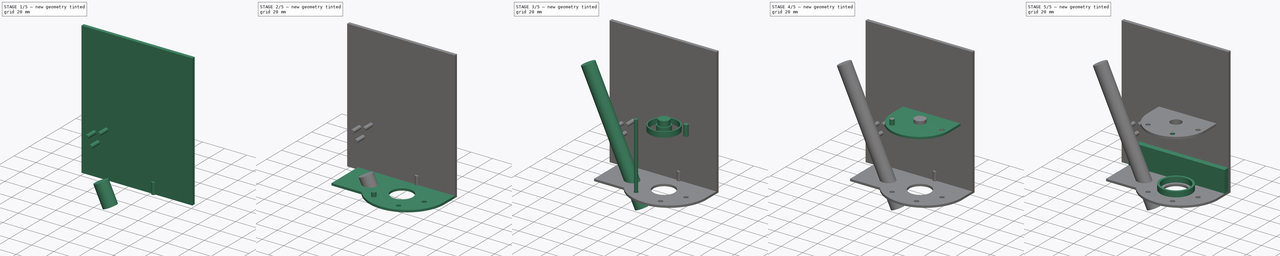
[diagram: build sequence overview — one tinted view per stage of 5, left to right]
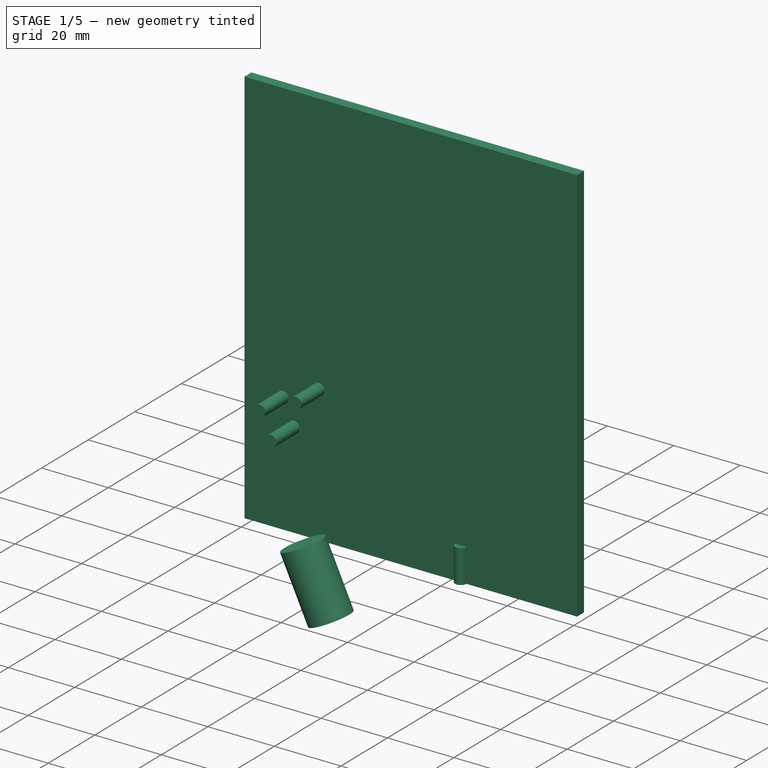
[diagram: stage 1 of 5 — iso view after this stage's code; geometry added in this stage tinted green]
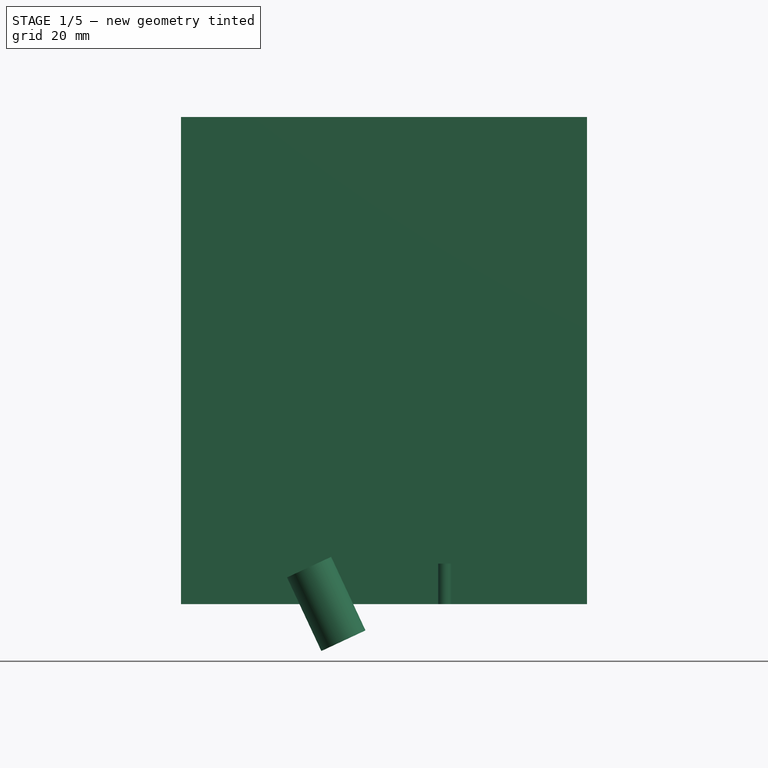
[diagram: stage 1 of 5 — front view after this stage's code; geometry added in this stage tinted green]
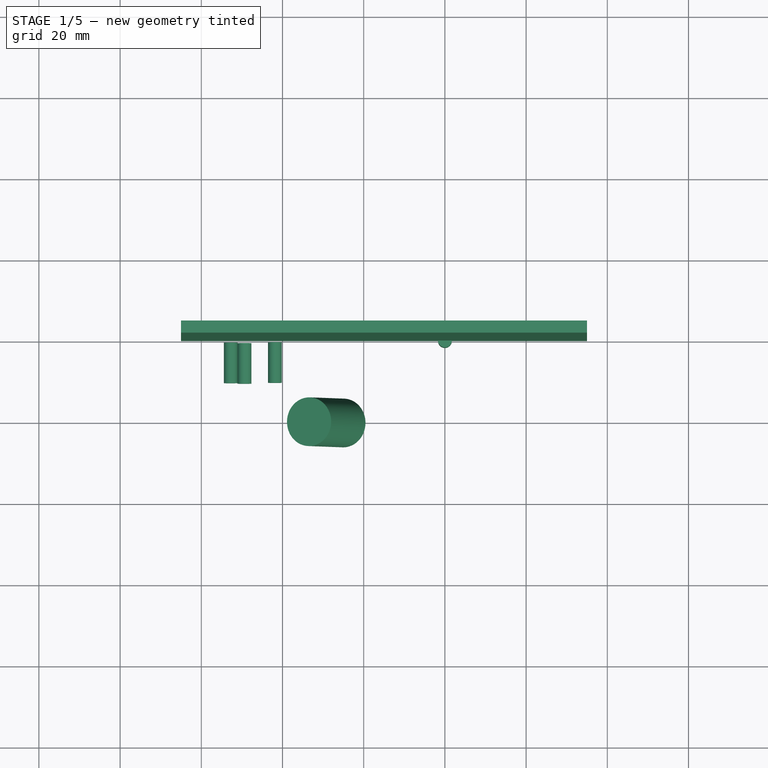
[diagram: stage 1 of 5 — top view after this stage's code; geometry added in this stage tinted green]
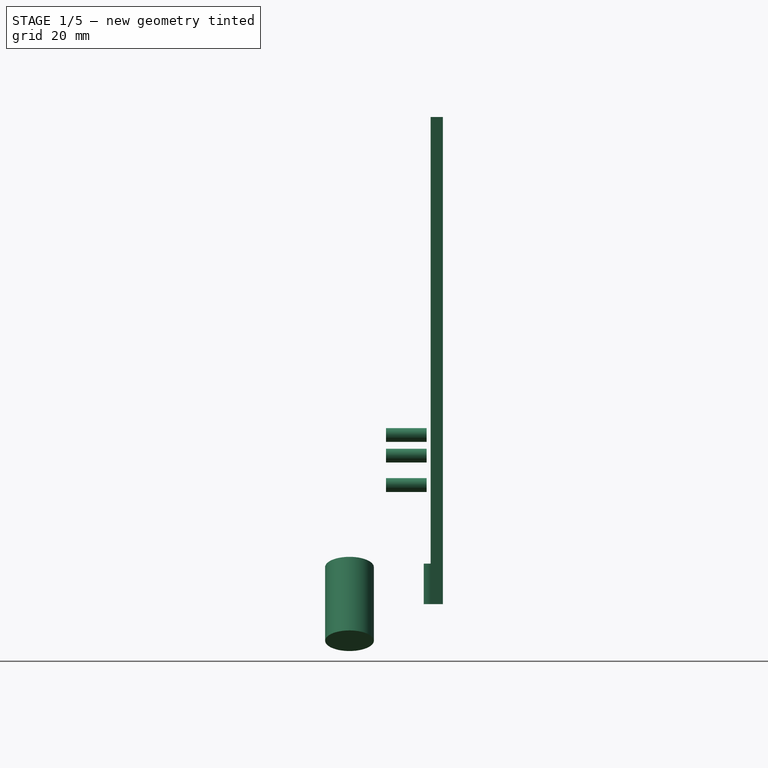
[diagram: stage 1 of 5 — right view after this stage's code; geometry added in this stage tinted green]
FCSTD DOCUMENT  (FreeCAD 0.19R)
Label: traeger1
License: All rights reserved
LicenseURL: http://en.wikipedia.org/wiki/All_rights_reserved
objects: Part::Cylinder×13, Part::Cut×8, Sketcher::SketchObject×6, Part::Feature×6, Part::Extrusion×5, Part::FeaturePython×3, Part::MultiFuse×1, Part::Box×1
note: 43 computed .brp shape members not serialized (recipe doc carries the construction recipe); baked Part::Feature solids carry a one-line shape summary decoded from their .brp

FEATURE [Part::Cylinder] Cylinder008
  Angle = 360
  AttacherType = Attacher::AttachEngine3D
  Height = 20
  Placement = pos=(-25,-20,-9) rot=(0,-1,0;0.436332rad)
  Radius = 6
FEATURE [Part::Feature] Cut007001
  shape: bbox 90 x 48 x 12.14 mm, 12 faces (baked)
FEATURE [Part::Feature] Cut007002
  shape: bbox 90 x 48 x 12.14 mm, 12 faces (baked)
FEATURE [Part::Feature] Extrude002001
  shape: bbox 90 x 5 x 20 mm, 6 faces (baked)
FEATURE [Part::Box] Box  label="Cube"
  AttacherType = Attacher::AttachEngine3D
  Height = 120
  Length = 100
  Placement = pos=(-65,0,0) rot=(0,0,1;0rad)
  Width = 3
FEATURE [Part::Feature] Cut003001  label="CameraHolder001"
  Placement = pos=(-45.2886,0,34.7499) rot=(0,-1,0;0.436332rad)
  shape: bbox 20.91 x 29.15 x 18.98 mm, 27 faces (baked)
FEATURE [Part::Cylinder] Cylinder009
  Angle = 360
  AttacherType = Attacher::AttachEngine3D
  Height = 10
  Radius = 1.7
FEATURE [Part::Cylinder] Cylinder010
  Angle = 360
  AttacherType = Attacher::AttachEngine3D
  Height = 10
  Placement = pos=(-49.37,-1,29.3454) rot=(0.954201,-0.211541,0.211541;1.61766rad)
  Radius = 1.7
FEATURE [Part::Cylinder] Cylinder011
  Angle = 360
  AttacherType = Attacher::AttachEngine3D
  Height = 10
  Placement = pos=(-41.8752,-1,41.6672) rot=(0.954201,-0.211541,0.211541;1.61766rad)
  Radius = 1.7
FEATURE [Part::Cylinder] Cylinder012
  Angle = 360
  AttacherType = Attacher::AttachEngine3D
  Height = 10
  Placement = pos=(-52.7509,-1,36.5958) rot=(0.954201,-0.211541,0.211541;1.61766rad)
  Radius = 1.7
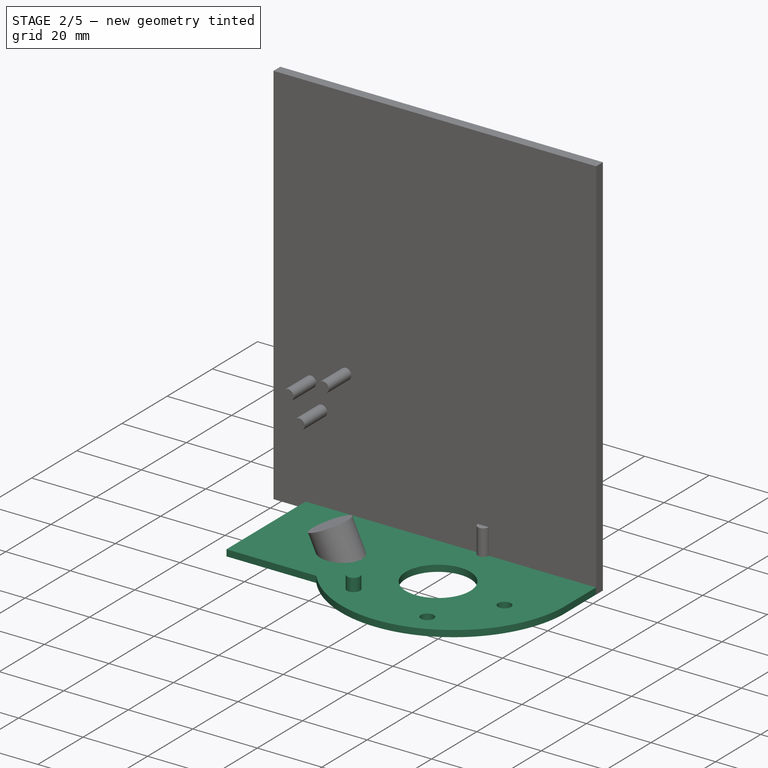
[diagram: stage 2 of 5 — iso view after this stage's code; geometry added in this stage tinted green]
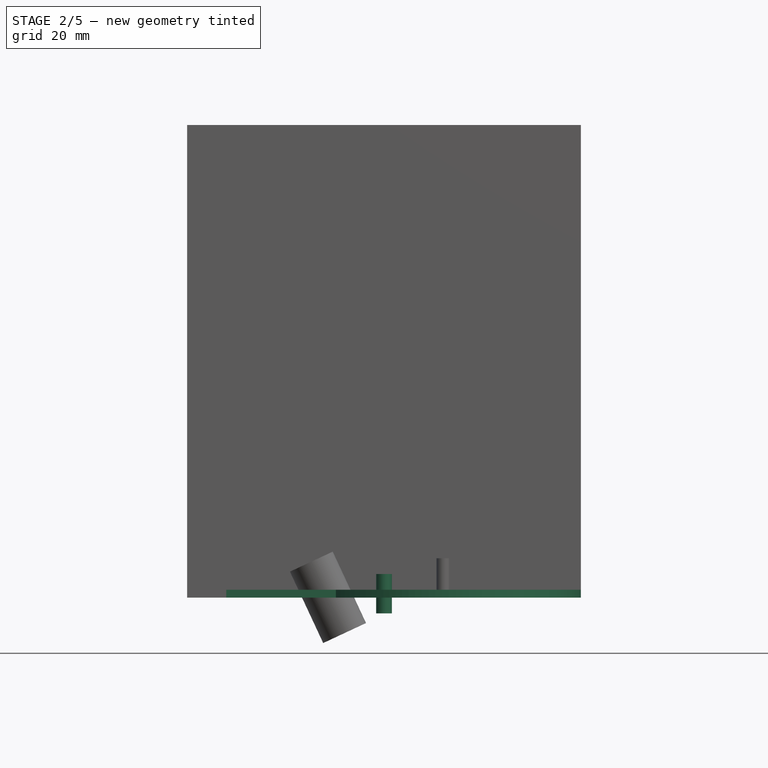
[diagram: stage 2 of 5 — front view after this stage's code; geometry added in this stage tinted green]
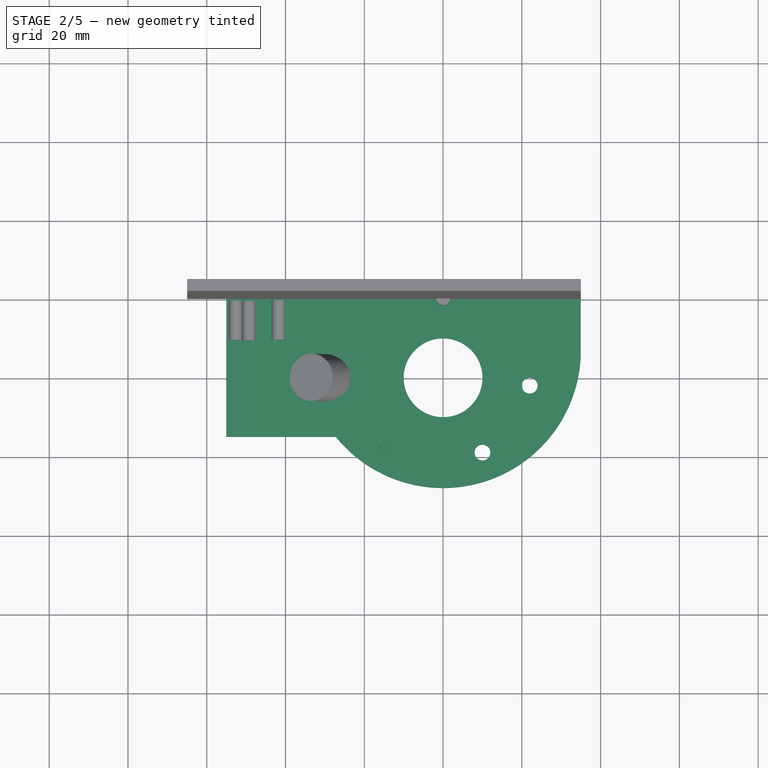
[diagram: stage 2 of 5 — top view after this stage's code; geometry added in this stage tinted green]
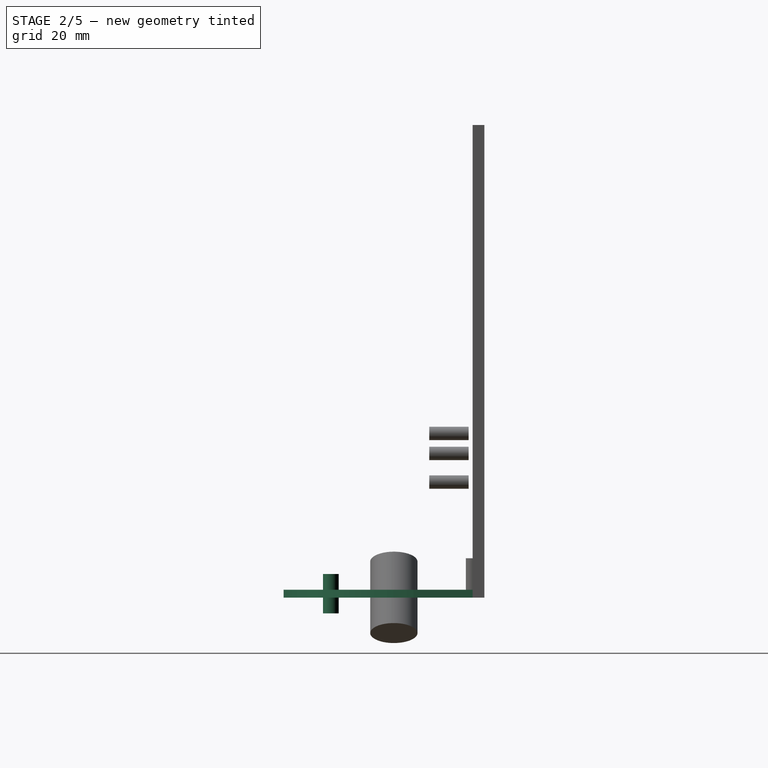
[diagram: stage 2 of 5 — right view after this stage's code; geometry added in this stage tinted green]
FEATURE [Sketcher::SketchObject] Sketch
  FullyConstrained = false
  sketch-geometry (6):
    g0: LineSegment StartX=-55.0572 StartY=-35 StartZ=0 EndX=-27.2213 EndY=-35 EndZ=0
    g1: LineSegment StartX=34.9428 StartY=0 StartZ=0 EndX=34.9428 EndY=-15 EndZ=0
    g2: ArcOfCircle CenterX=0 CenterY=-13 CenterZ=0 NormalX=0 NormalY=0 NormalZ=1 AngleXU=0 Radius=35 StartAngle=3.82131 EndAngle=6.22601
    g3: LineSegment StartX=-55.0572 StartY=-35 StartZ=0 EndX=-55.0572 EndY=0 EndZ=0
    g4: LineSegment StartX=34.9428 StartY=0 StartZ=0 EndX=-55.0572 EndY=0 EndZ=0
    g5: Circle CenterX=0 CenterY=-20 CenterZ=0 NormalX=0 NormalY=0 NormalZ=1 AngleXU=0 Radius=10
  constraints (19):
    c: Coincident(g2,g0)
    c: Coincident(g2,g1)
    c: PointOnObject(g2,g-2)
    c: Vertical(g1)
    c: Vertical(g3)
    c: Horizontal(g0)
    c: Coincident(g4,g1)
    c: Coincident(g4,g3)
    c: Horizontal(g4)
    c: Coincident(g3,g0)
    c: PointOnObject(g-1,g4)
    c: Radius(g5) = 10
    c: Radius(g2) = 35
    c: Distance(g4) = 90
    c: Distance(g3) = 35
    c: Distance(g-1,g5) = 20
    c: Distance(g-1,g2) = 13
    c: Distance(g1) = 15
    c: PointOnObject(g5,g-2)
FEATURE [Part::Extrusion] Extrude
  Base = -> Sketch
  Dir = (0,0,1)
  DirMode = 2
  FaceMakerClass = Part::FaceMakerBullseye
  LengthFwd = 2
  LengthRev = 0
  Solid = true
  Symmetric = false
FEATURE [Part::Cylinder] Cylinder004
  Angle = 360
  AttacherType = Attacher::AttachEngine3D
  Height = 10
  Placement = pos=(22,-22,-4) rot=(0,0,1;0rad)
  Radius = 2
FEATURE [Part::Cylinder] Cylinder005
  Angle = 360
  AttacherType = Attacher::AttachEngine3D
  Height = 10
  Placement = pos=(10,-39,-4) rot=(0,0,1;0rad)
  Radius = 2
FEATURE [Part::Cylinder] Cylinder006
  Angle = 360
  AttacherType = Attacher::AttachEngine3D
  Height = 10
  Placement = pos=(-15,-36,-4) rot=(0,0,1;0rad)
  Radius = 2
FEATURE [Part::Cut] Cut004
  Base = -> Extrude
  Tool = -> Cylinder004
FEATURE [Part::Cut] Cut005
  Base = -> Cut004
  Tool = -> Cylinder005
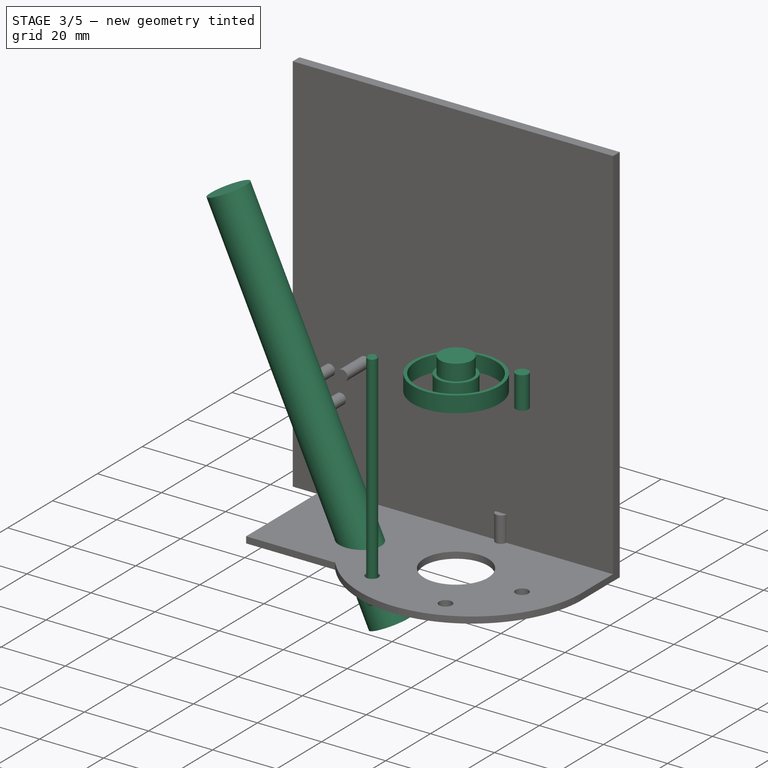
[diagram: stage 3 of 5 — iso view after this stage's code; geometry added in this stage tinted green]
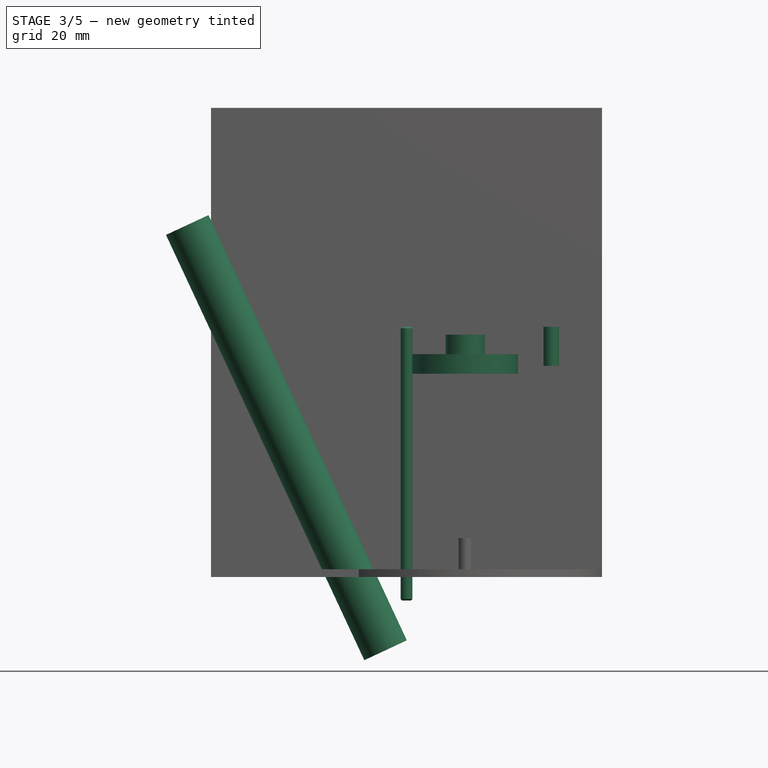
[diagram: stage 3 of 5 — front view after this stage's code; geometry added in this stage tinted green]
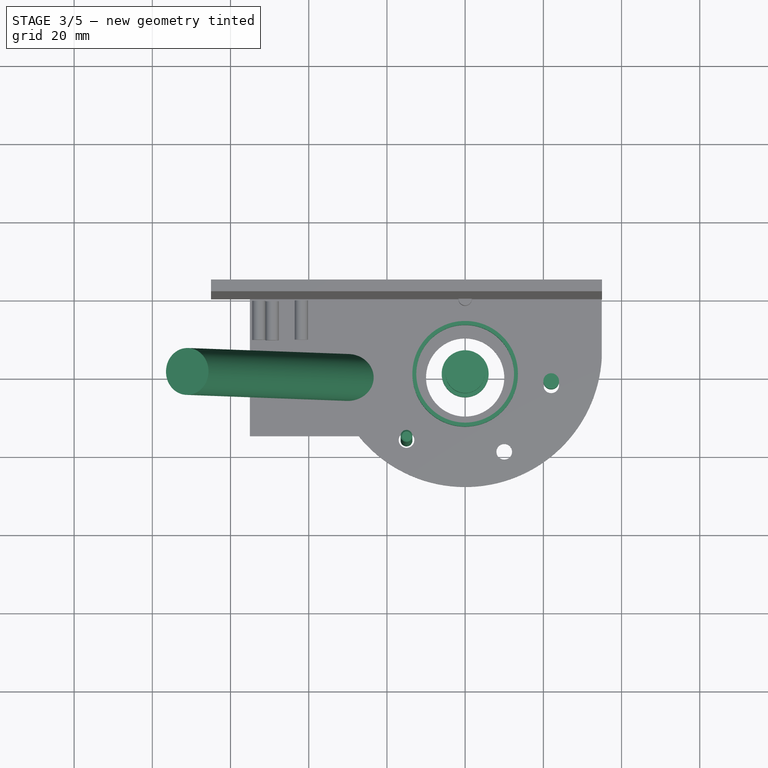
[diagram: stage 3 of 5 — top view after this stage's code; geometry added in this stage tinted green]
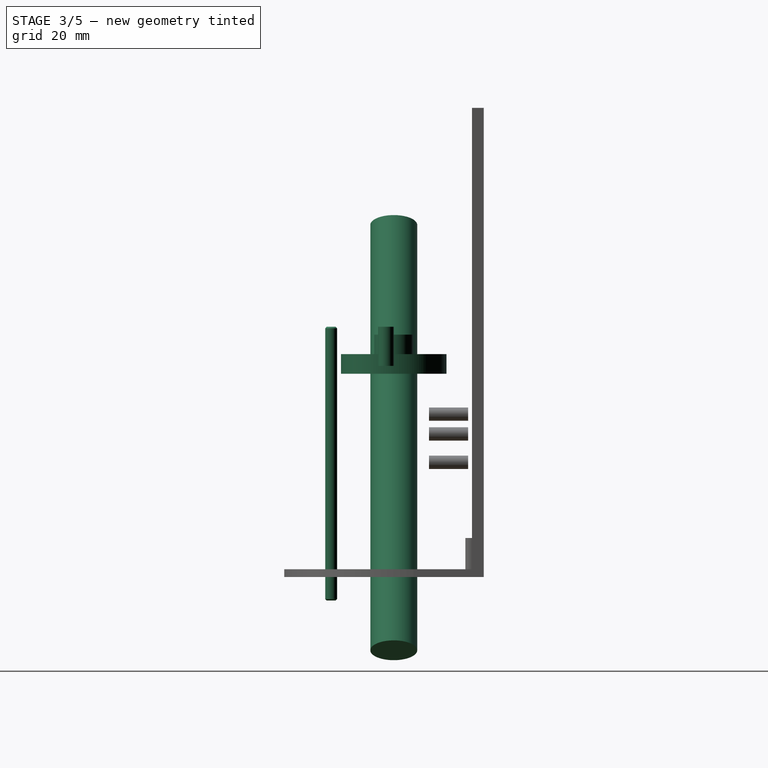
[diagram: stage 3 of 5 — right view after this stage's code; geometry added in this stage tinted green]
FEATURE [Part::FeaturePython] ThreadedRod002  label="M3x70.0-ThreadedRod006"  # Fasteners workbench fastener (typed FeaturePython)
  Placement = pos=(-15,-36,64) rot=(0,0,1;0rad)
  diameter = 4
  invert = false
  length = 70
  matchOuter = false
  offset = 0
  thread = false
FEATURE [Part::Feature] Sweep001
  Placement = pos=(0,-20,3) rot=(0,0,1;0rad)
  shape: bbox 32.61 x 36.58 x 51.9 mm, 12 faces (baked)
FEATURE [Part::Feature] Fusion001  label="Pen"
  Placement = pos=(0,-20,91) rot=(1,0,0;3.14159rad)
  shape: bbox 10 x 10 x 105 mm, 8 faces (baked)
FEATURE [Sketcher::SketchObject] Sketch003
  ExternalGeometry = -> [Fusion001,Sweep001]
  FullyConstrained = true
  Placement = pos=(0,0,52) rot=(0,0,1;0rad)
  sketch-geometry (11):
    g0: Circle CenterX=0 CenterY=-20 CenterZ=0 NormalX=0 NormalY=0 NormalZ=1 AngleXU=0 Radius=12.5
    g1: GeomPoint X=12.5 Y=-20 Z=0
    g2: Circle CenterX=0 CenterY=-20 CenterZ=0 NormalX=0 NormalY=0 NormalZ=1 AngleXU=0 Radius=13.5
    g3: GeomPoint X=13.5 Y=-20 Z=0
    g4: LineSegment StartX=12.5 StartY=-20 StartZ=0 EndX=13.5 EndY=-20 EndZ=0
    g5: Circle CenterX=0 CenterY=-20 CenterZ=0 NormalX=0 NormalY=0 NormalZ=1 AngleXU=0 Radius=5
    g6: Circle CenterX=0 CenterY=-20 CenterZ=0 NormalX=0 NormalY=0 NormalZ=1 AngleXU=0 Radius=6
    g7: GeomPoint X=5 Y=-20 Z=0
    g8: GeomPoint X=6 Y=-20 Z=0
    g9: LineSegment StartX=5 StartY=-20 StartZ=0 EndX=6 EndY=-20 EndZ=0
    g10: LineSegment StartX=5 StartY=-20 StartZ=0 EndX=0 EndY=-20 EndZ=0
  constraints (21):
    c: Coincident(g0,g-3)
    c: PointOnObject(g1,g0)
    c: Coincident(g1,g-4)
    c: Coincident(g2,g0)
    c: PointOnObject(g3,g2)
    c: Coincident(g4,g1)
    c: Coincident(g4,g3)
    c: Horizontal(g4)
    c: Distance(g4) = 1
    c: Coincident(g5,g0)
    c: Radius(g5) = 5
    c: Coincident(g6,g0)
    c: PointOnObject(g7,g5)
    c: PointOnObject(g8,g6)
    c: Coincident(g9,g7)
    c: Coincident(g9,g8)
    c: Horizontal(g9)
    c: Coincident(g10,g7)
    c: Coincident(g10,g0)
    c: Horizontal(g10)
    c: Distance(g9) = 1
FEATURE [Part::Extrusion] Extrude003
  Base = -> Sketch003
  Dir = (0,0,1)
  DirMode = 2
  FaceMakerClass = Part::FaceMakerBullseye
  LengthFwd = 5
  LengthRev = 0
  Solid = true
  Symmetric = false
FEATURE [Sketcher::SketchObject] Sketch005
  ExternalGeometry = -> [ThreadedRod002,ThreadedRod001,ThreadedRod,Fusion001]
  FullyConstrained = true
  MapMode = 5
  Placement = pos=(0,0,59) rot=(0,0,1;0rad)
  Support = -> [Fusion]
  sketch-geometry (4):
    g0: Circle CenterX=-15 CenterY=-36 CenterZ=0 NormalX=0 NormalY=0 NormalZ=1 AngleXU=0 Radius=2
    g1: Circle CenterX=10 CenterY=-39 CenterZ=0 NormalX=0 NormalY=0 NormalZ=1 AngleXU=0 Radius=2
    g2: Circle CenterX=22 CenterY=-22 CenterZ=0 NormalX=0 NormalY=0 NormalZ=1 AngleXU=0 Radius=2
    g3: Circle CenterX=0 CenterY=-20 CenterZ=0 NormalX=0 NormalY=0 NormalZ=1 AngleXU=0 Radius=5
  constraints (8):
    c: Coincident(g0,g-3)
    c: Coincident(g1,g-4)
    c: Coincident(g2,g-5)
    c: Radius(g2) = 2
    c: Radius(g1) = 2
    c: Radius(g0) = 2
    c: Coincident(g3,g-6)
    c: Radius(g3) = 5
FEATURE [Part::Cylinder] Cylinder
  Angle = 360
  AttacherType = Attacher::AttachEngine3D
  Height = 10
  Placement = pos=(22,-22,54) rot=(0,0,1;0rad)
  Radius = 2
FEATURE [Part::Cylinder] Cylinder003
  Angle = 360
  AttacherType = Attacher::AttachEngine3D
  Height = 10
  Placement = pos=(0,-20,62) rot=(1,0,0;3.14159rad)
  Radius = 5
FEATURE [Part::Cut] Cut006
  Base = -> Cut005
  Tool = -> Cylinder006
FEATURE [Part::Cylinder] Cylinder007  label="Camera"
  Angle = 360
  AttacherType = Attacher::AttachEngine3D
  Height = 120
  Placement = pos=(-20.3541,-20,-18.7222) rot=(0,-1,0;0.436332rad)
  Radius = 6
FEATURE [Part::Cut] Cut007
  Base = -> Cut006
  Tool = -> Cylinder008
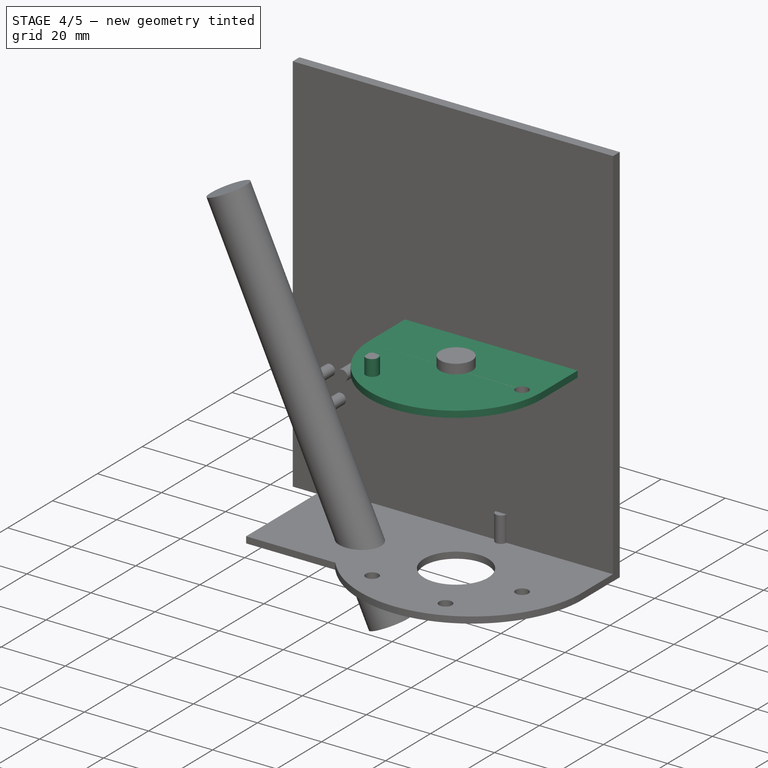
[diagram: stage 4 of 5 — iso view after this stage's code; geometry added in this stage tinted green]
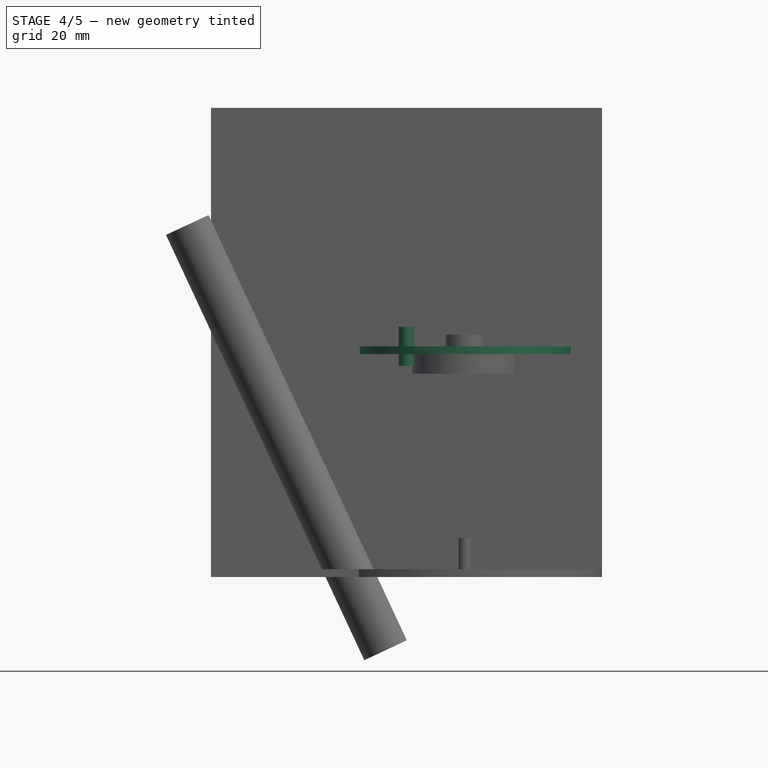
[diagram: stage 4 of 5 — front view after this stage's code; geometry added in this stage tinted green]
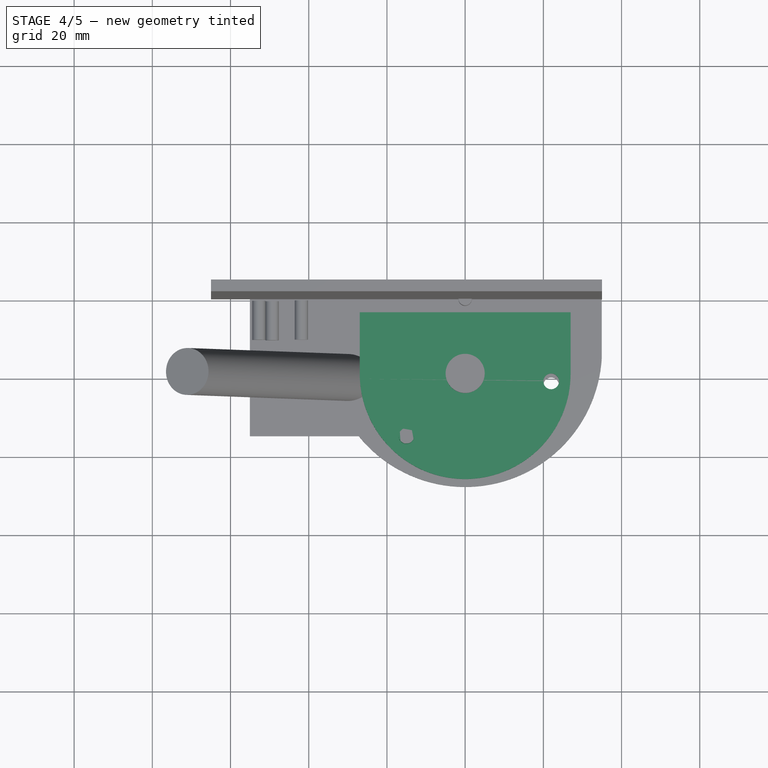
[diagram: stage 4 of 5 — top view after this stage's code; geometry added in this stage tinted green]
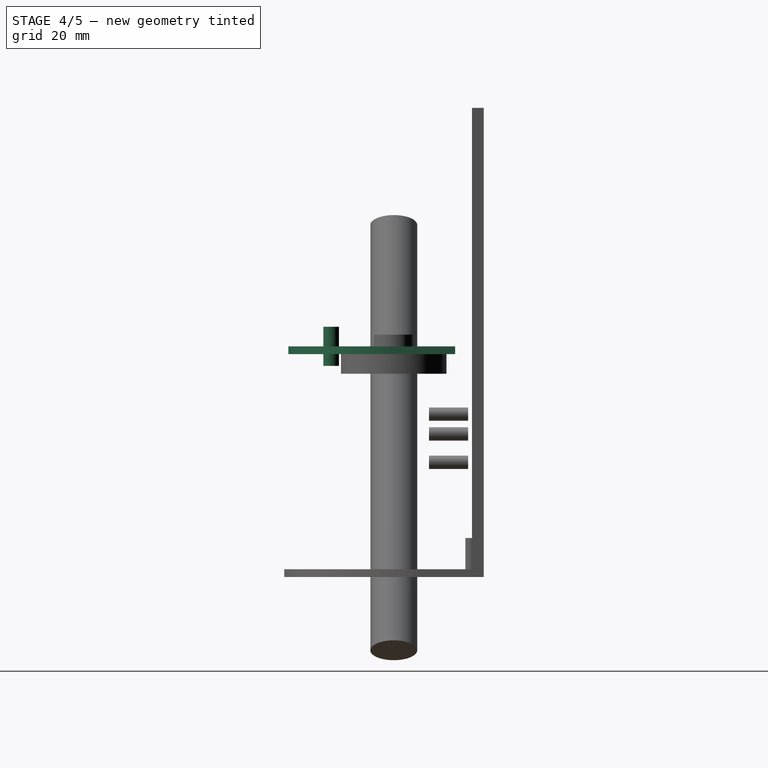
[diagram: stage 4 of 5 — right view after this stage's code; geometry added in this stage tinted green]
FEATURE [Part::FeaturePython] ThreadedRod  label="M3x70.0-ThreadedRod"  # Fasteners workbench fastener (typed FeaturePython)
  Placement = pos=(22,-22,64) rot=(0,0,1;0rad)
  diameter = 4
  invert = false
  length = 70
  matchOuter = false
  offset = 0
  thread = false
FEATURE [Part::FeaturePython] ThreadedRod001  label="M3x70.0-ThreadedRod005"  # Fasteners workbench fastener (typed FeaturePython)
  Placement = pos=(10,-39,64) rot=(0,0,1;0rad)
  diameter = 4
  invert = false
  length = 70
  matchOuter = false
  offset = 0
  thread = false
FEATURE [Sketcher::SketchObject] Sketch004
  ExternalGeometry = -> [ThreadedRod,ThreadedRod001,ThreadedRod002,Extrude003]
  FullyConstrained = false
  MapMode = 5
  Placement = pos=(0,0,57) rot=(0,0,1;0rad)
  Support = -> [Extrude003]
  sketch-geometry (4):
    g0: ArcOfCircle CenterX=0 CenterY=-20 CenterZ=0 NormalX=0 NormalY=0 NormalZ=1 AngleXU=0 Radius=26.9647 StartAngle=3.14159 EndAngle=6.28319
    g1: LineSegment StartX=-26.9647 StartY=-20 StartZ=0 EndX=-26.9647 EndY=-4.31523 EndZ=0
    g2: LineSegment StartX=-26.9647 StartY=-4.31523 StartZ=0 EndX=26.9647 EndY=-4.31523 EndZ=0
    g3: LineSegment StartX=26.9647 StartY=-4.31523 StartZ=0 EndX=26.9647 EndY=-20 EndZ=0
  constraints (8):
    c: Coincident(g0,g-6)
    c: Coincident(g1,g0)
    c: Vertical(g1)
    c: Coincident(g2,g1)
    c: Horizontal(g2)
    c: Coincident(g3,g2)
    c: Coincident(g3,g0)
    c: Vertical(g3)
FEATURE [Part::Extrusion] Extrude005
  Base = -> Sketch004
  Dir = (0,0,1)
  DirMode = 2
  FaceMakerClass = Part::FaceMakerBullseye
  LengthFwd = 2
  LengthRev = 0
  Solid = true
  Symmetric = false
FEATURE [Part::MultiFuse] Fusion
  Shapes = -> [Extrude003,Extrude005]
FEATURE [Part::Cylinder] Cylinder002
  Angle = 360
  AttacherType = Attacher::AttachEngine3D
  Height = 10
  Placement = pos=(-15,-36,54) rot=(0,0,1;0rad)
  Radius = 2
FEATURE [Part::Cut] Cut
  Base = -> Fusion
  Tool = -> Cylinder
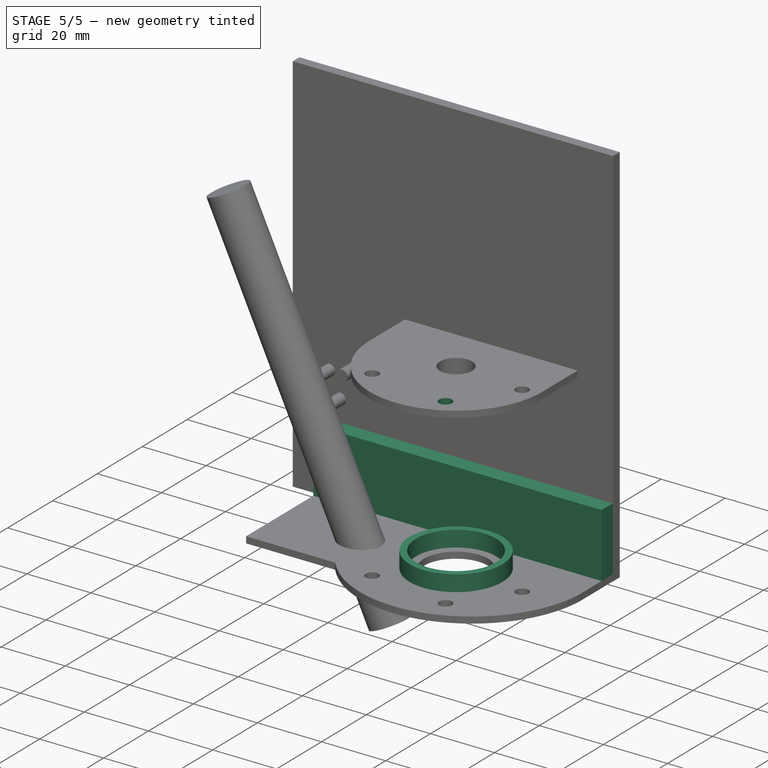
[diagram: stage 5 of 5 — iso view after this stage's code; geometry added in this stage tinted green]
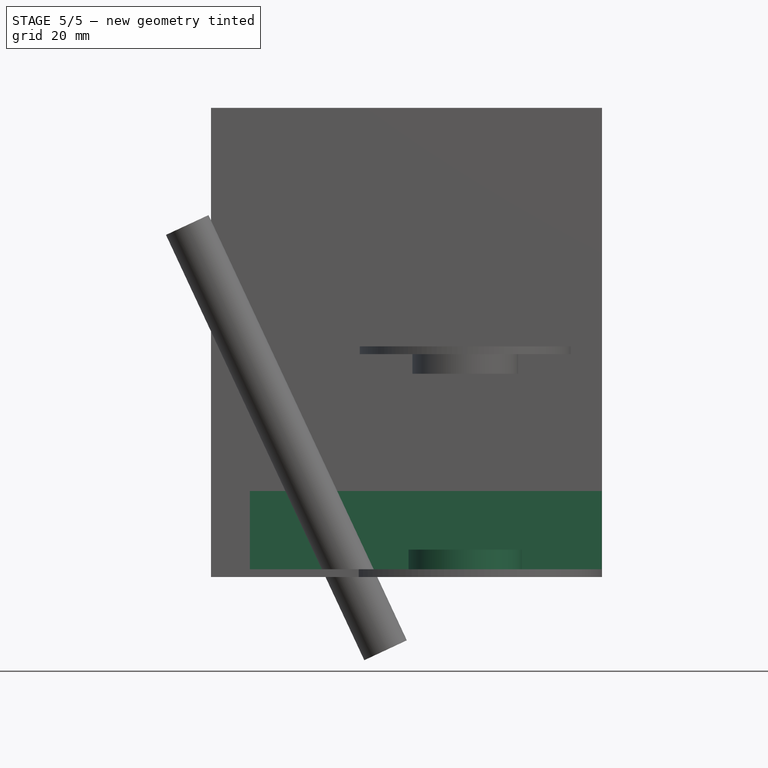
[diagram: stage 5 of 5 — front view after this stage's code; geometry added in this stage tinted green]
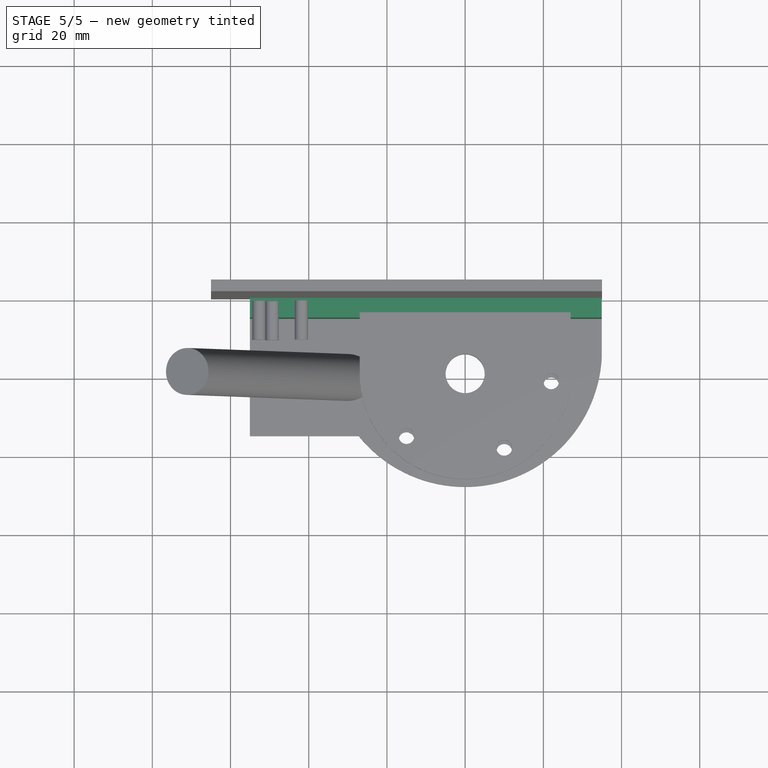
[diagram: stage 5 of 5 — top view after this stage's code; geometry added in this stage tinted green]
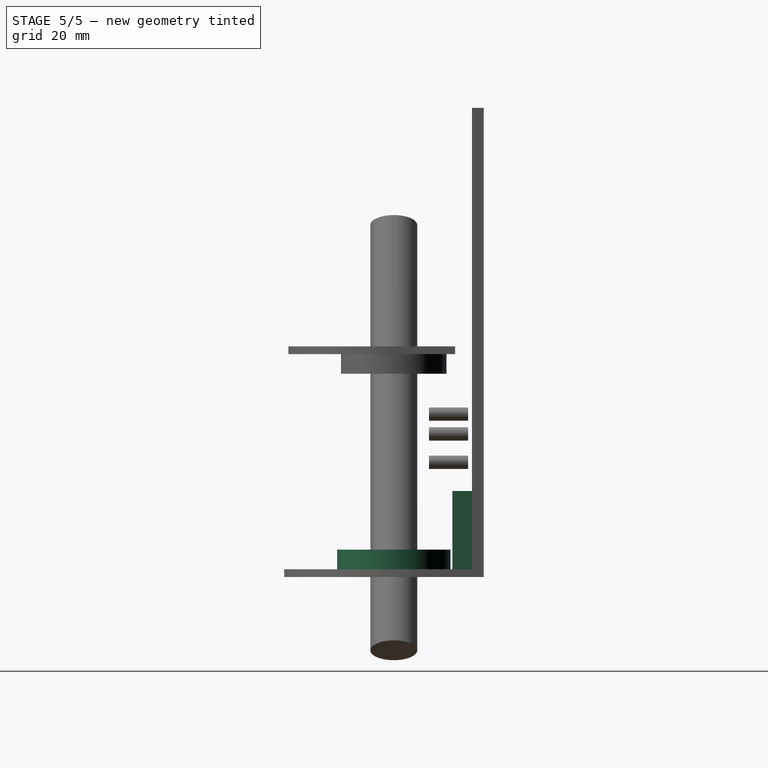
[diagram: stage 5 of 5 — right view after this stage's code; geometry added in this stage tinted green]
FEATURE [Sketcher::SketchObject] Sketch001
  ExternalGeometry = -> [Extrude]
  FullyConstrained = false
  MapMode = 5
  Placement = pos=(0,0,2) rot=(0,0,1;0rad)
  Support = -> [Extrude]
  sketch-geometry (4):
    g0: Circle CenterX=0 CenterY=-20 CenterZ=0 NormalX=0 NormalY=0 NormalZ=1 AngleXU=0 Radius=12.5
    g1: Circle CenterX=0 CenterY=-20 CenterZ=0 NormalX=0 NormalY=0 NormalZ=1 AngleXU=0 Radius=14.5
    g2: LineSegment StartX=12.5 StartY=-20 StartZ=0 EndX=14.5 EndY=-20 EndZ=0
    g3: LineSegment StartX=0 StartY=-20 StartZ=0 EndX=12.5 EndY=-20 EndZ=0
  constraints (10):
    c: Horizontal(g2)
    c: PointOnObject(g2,g0)
    c: PointOnObject(g2,g1)
    c: Horizontal(g3)
    c: Coincident(g3,g0)
    c: Coincident(g3,g2)
    c: Coincident(g0,g-3)
    c: Coincident(g1,g0)
    c: Distance(g2) = 2
    c: Radius(g0) = 12.5
FEATURE [Part::Extrusion] Extrude001
  Base = -> Sketch001
  Dir = (0,0,1)
  DirMode = 0
  FaceMakerClass = Part::FaceMakerBullseye
  LengthFwd = 5
  LengthRev = 0
  Solid = true
  Symmetric = false
FEATURE [Sketcher::SketchObject] Sketch002
  ExternalGeometry = -> [Extrude]
  FullyConstrained = false
  MapMode = 5
  Placement = pos=(0,0,2) rot=(0,0,1;0rad)
  Support = -> [Extrude]
  sketch-geometry (4):
    g0: LineSegment StartX=-55.0572 StartY=0 StartZ=0 EndX=34.9428 EndY=0 EndZ=0
    g1: LineSegment StartX=34.9428 StartY=0 StartZ=0 EndX=34.9428 EndY=-5 EndZ=0
    g2: LineSegment StartX=34.9428 StartY=-5 StartZ=0 EndX=-55.0572 EndY=-5 EndZ=0
    g3: LineSegment StartX=-55.0572 StartY=-5 StartZ=0 EndX=-55.0572 EndY=0 EndZ=0
  constraints (11):
    c: Coincident(g0,g1)
    c: Coincident(g1,g2)
    c: Coincident(g2,g3)
    c: Coincident(g3,g0)
    c: Horizontal(g0)
    c: Horizontal(g2)
    c: Vertical(g1)
    c: Vertical(g3)
    c: Coincident(g0,g-3)
    c: PointOnObject(g1,g-4)
    c: Distance(g1) = 5
FEATURE [Part::Extrusion] Extrude002
  Base = -> Sketch002
  Dir = (0,0,1)
  DirMode = 2
  FaceMakerClass = Part::FaceMakerBullseye
  LengthFwd = 20
  LengthRev = 0
  Solid = true
  Symmetric = false
FEATURE [Part::Cylinder] Cylinder001
  Angle = 360
  AttacherType = Attacher::AttachEngine3D
  Height = 10
  Placement = pos=(10,-39,55) rot=(0,0,1;0rad)
  Radius = 2
FEATURE [Part::Cut] Cut001
  Base = -> Cut
  Tool = -> Cylinder002
FEATURE [Part::Cut] Cut002
  Base = -> Cut001
  Tool = -> Cylinder001
FEATURE [Part::Cut] Cut003
  Base = -> Cut002
  Tool = -> Cylinder003
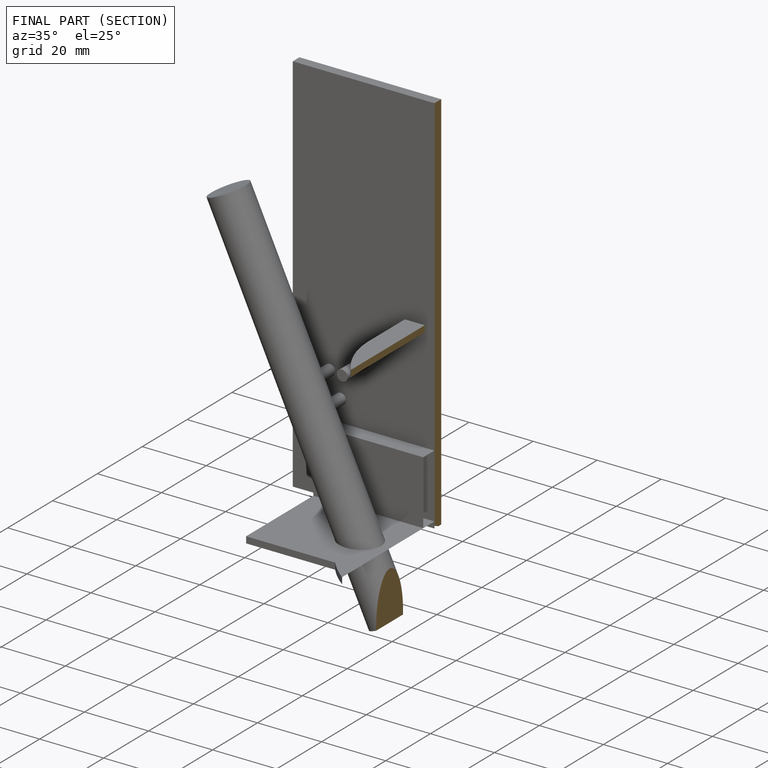
[diagram: finished part — half-section view (interior)]
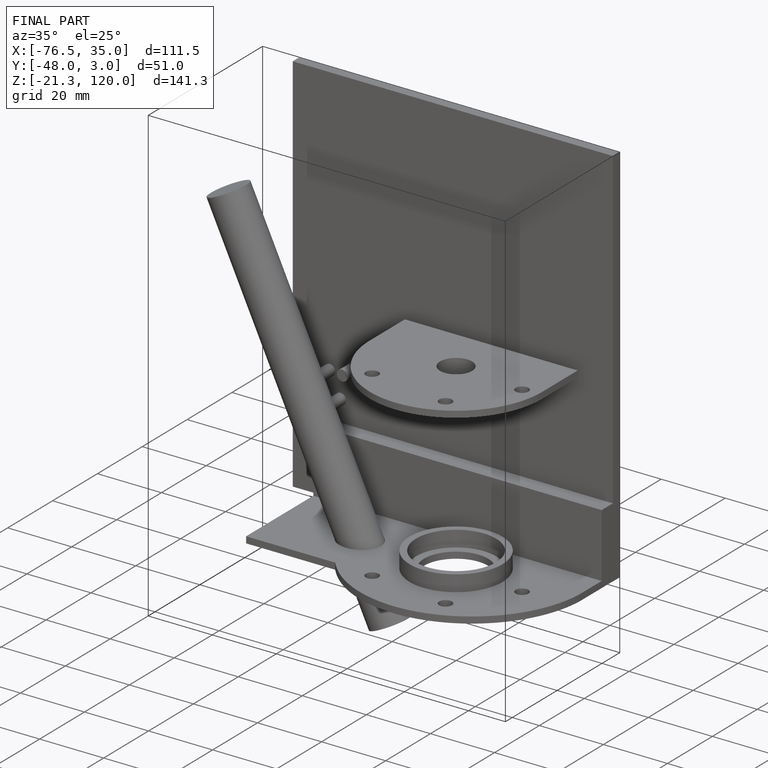
[diagram: finished part — iso view with bounding-box wireframe]
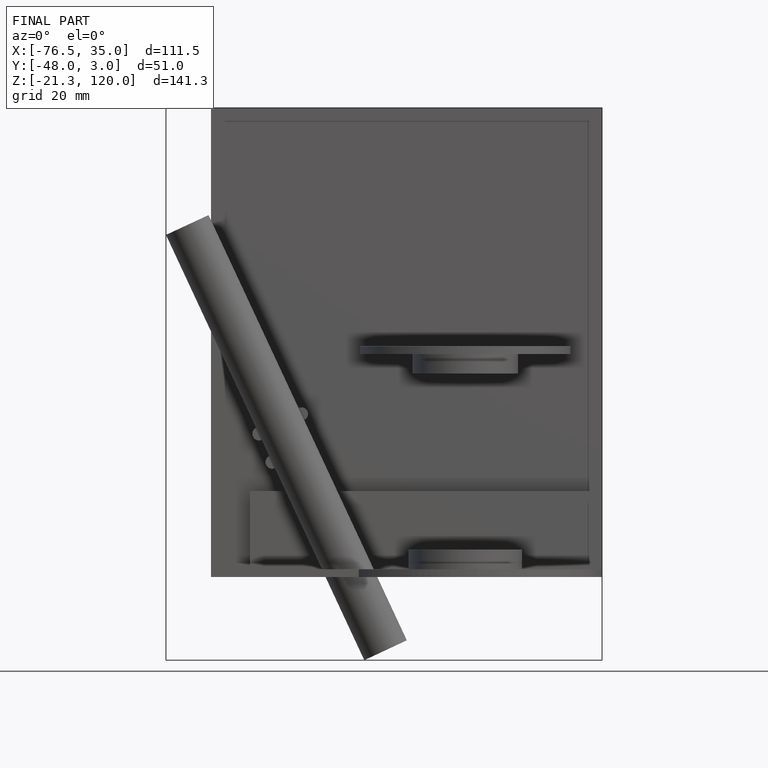
[diagram: finished part — front view with bounding-box wireframe]
